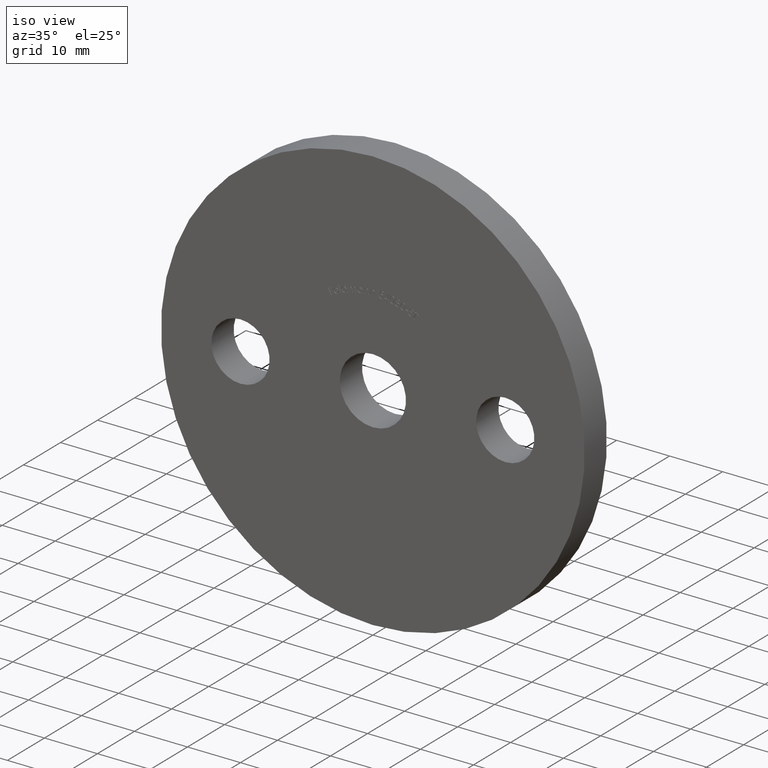
[diagram: clean part render]
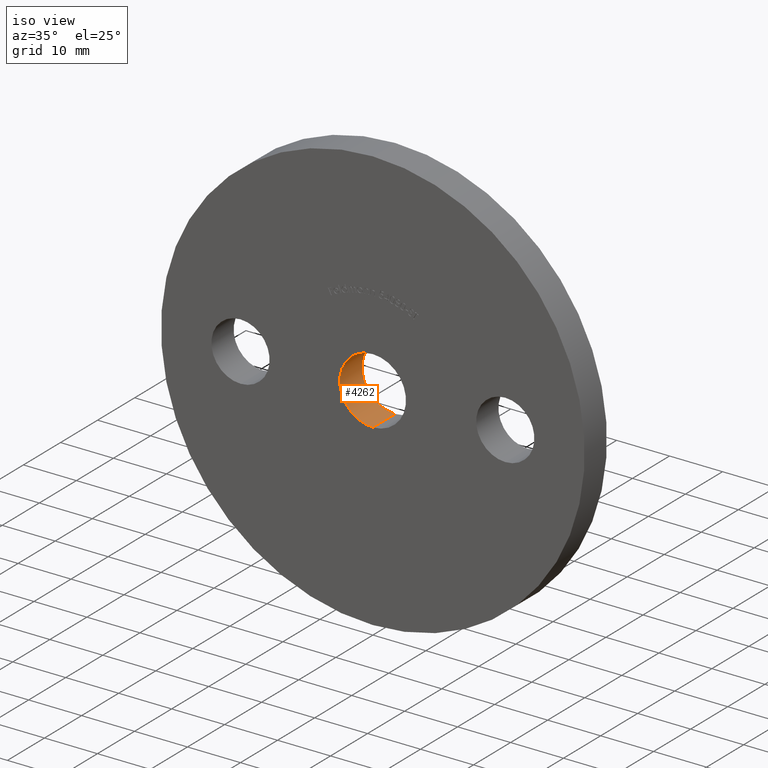
[diagram: same view with one face highlighted and labeled with its STEP entity id]
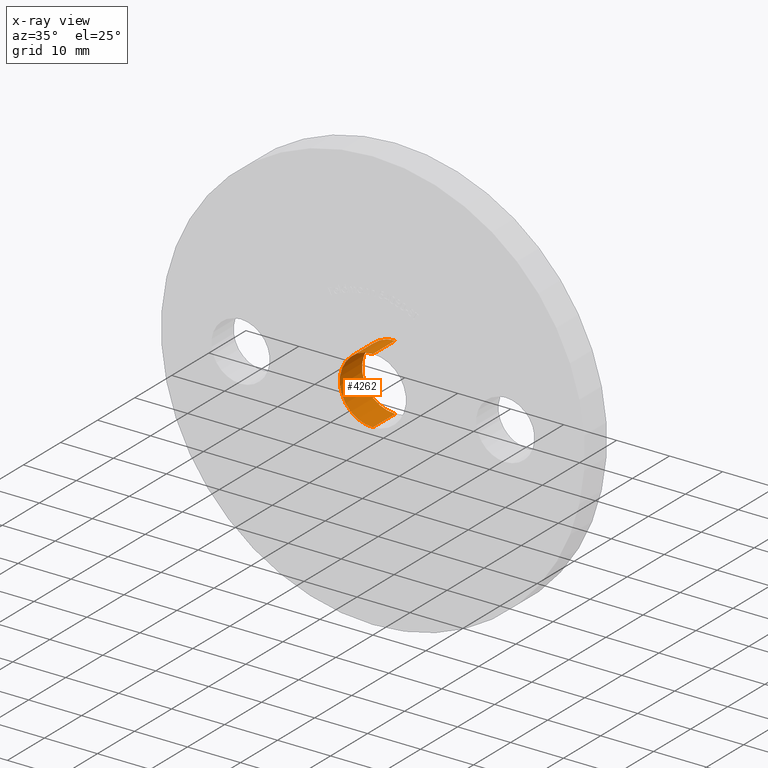
[diagram: x-ray of the same camera — body ghosted, the highlighted face saturated]
A machine part, iso view. The second image highlights one B-rep face of the part: STEP entity #4262.
The next image is the same camera in x-ray: the body ghosted, the highlighted face saturated — about 0% of this face is hidden behind the body in this view.
In plain terms, the highlighted cylindrical surface (partial cylindrical patch) has radius 6.25 mm, axis along (-0, 1, -0).
Its self-contained STEP definition (entity closure, byte-faithful):
#360 = EDGE_CURVE ( 'NONE', #1138, #10514, #9803, .T. ) ;
#725 = DIRECTION ( 'NONE',  ( 0.0000000000000000000, 0.0000000000000000000, 1.000000000000000000 ) ) ;
#917 = DIRECTION ( 'NONE',  ( -0.0000000000000000000, 1.000000000000000000, -0.0000000000000000000 ) ) ;
#1138 = VERTEX_POINT ( 'NONE', #6600 ) ;
#1375 = CARTESIAN_POINT ( 'NONE',  ( 0.0000000000000000000, 0.0000000000000000000, 0.0000000000000000000 ) ) ;
#2191 = EDGE_LOOP ( 'NONE', ( #12504, #5024, #6246, #11642 ) ) ;
#2646 = CIRCLE ( 'NONE', #6693, 6.250000000000000000 ) ;
#3081 = DIRECTION ( 'NONE',  ( 0.0000000000000000000, 1.000000000000000000, 0.0000000000000000000 ) ) ;
#3727 = CARTESIAN_POINT ( 'NONE',  ( 0.0000000000000000000, 6.000000000000000000, 6.250000000000000000 ) ) ;
#3905 = DIRECTION ( 'NONE',  ( 0.0000000000000000000, 1.000000000000000000, 0.0000000000000000000 ) ) ;
#4262 = ADVANCED_FACE ( 'NONE', ( #10385 ), #12099, .F. ) ;
#4502 = EDGE_CURVE ( 'NONE', #6297, #1138, #6044, .T. ) ;
#4925 = DIRECTION ( 'NONE',  ( 0.0000000000000000000, 0.0000000000000000000, 1.000000000000000000 ) ) ;
#5024 = ORIENTED_EDGE ( 'NONE', *, *, #7236, .T. ) ;
#5399 = EDGE_CURVE ( 'NONE', #10733, #10514, #2646, .T. ) ;
#5951 = CARTESIAN_POINT ( 'NONE',  ( 7.654042494670957600E-016, 0.0000000000000000000, -6.250000000000000000 ) ) ;
#6044 = CIRCLE ( 'NONE', #10022, 6.250000000000000000 ) ;
#6246 = ORIENTED_EDGE ( 'NONE', *, *, #5399, .T. ) ;
#6297 = VERTEX_POINT ( 'NONE', #5951 ) ;
#6600 = CARTESIAN_POINT ( 'NONE',  ( 0.0000000000000000000, 0.0000000000000000000, 6.250000000000000000 ) ) ;
#6693 = AXIS2_PLACEMENT_3D ( 'NONE', #9872, #3081, #4925 ) ;
#6904 = CARTESIAN_POINT ( 'NONE',  ( 7.654042494670957600E-016, 6.000000000000000000, -6.250000000000000000 ) ) ;
#7236 = EDGE_CURVE ( 'NONE', #6297, #10733, #9123, .T. ) ;
#7414 = VECTOR ( 'NONE', #917, 1000.000000000000000 ) ;
#7740 = CARTESIAN_POINT ( 'NONE',  ( 0.0000000000000000000, 0.0000000000000000000, 0.0000000000000000000 ) ) ;
#7906 = CARTESIAN_POINT ( 'NONE',  ( 7.654042494670957600E-016, 0.0000000000000000000, -6.250000000000000000 ) ) ;
#8693 = AXIS2_PLACEMENT_3D ( 'NONE', #1375, #11352, #9301 ) ;
#9005 = DIRECTION ( 'NONE',  ( -0.0000000000000000000, 1.000000000000000000, -0.0000000000000000000 ) ) ;
#9123 = LINE ( 'NONE', #7906, #7414 ) ;
#9301 = DIRECTION ( 'NONE',  ( 0.0000000000000000000, 0.0000000000000000000, 1.000000000000000000 ) ) ;
#9803 = LINE ( 'NONE', #10003, #10431 ) ;
#9872 = CARTESIAN_POINT ( 'NONE',  ( 0.0000000000000000000, 6.000000000000000000, 0.0000000000000000000 ) ) ;
#10003 = CARTESIAN_POINT ( 'NONE',  ( 0.0000000000000000000, 0.0000000000000000000, 6.250000000000000000 ) ) ;
#10022 = AXIS2_PLACEMENT_3D ( 'NONE', #7740, #3905, #725 ) ;
#10385 = FACE_OUTER_BOUND ( 'NONE', #2191, .T. ) ;
#10431 = VECTOR ( 'NONE', #9005, 1000.000000000000000 ) ;
#10514 = VERTEX_POINT ( 'NONE', #3727 ) ;
#10733 = VERTEX_POINT ( 'NONE', #6904 ) ;
#11352 = DIRECTION ( 'NONE',  ( -0.0000000000000000000, 1.000000000000000000, -0.0000000000000000000 ) ) ;
#11642 = ORIENTED_EDGE ( 'NONE', *, *, #360, .F. ) ;
#12099 = CYLINDRICAL_SURFACE ( 'NONE', #8693, 6.250000000000000000 ) ;
#12504 = ORIENTED_EDGE ( 'NONE', *, *, #4502, .F. ) ;